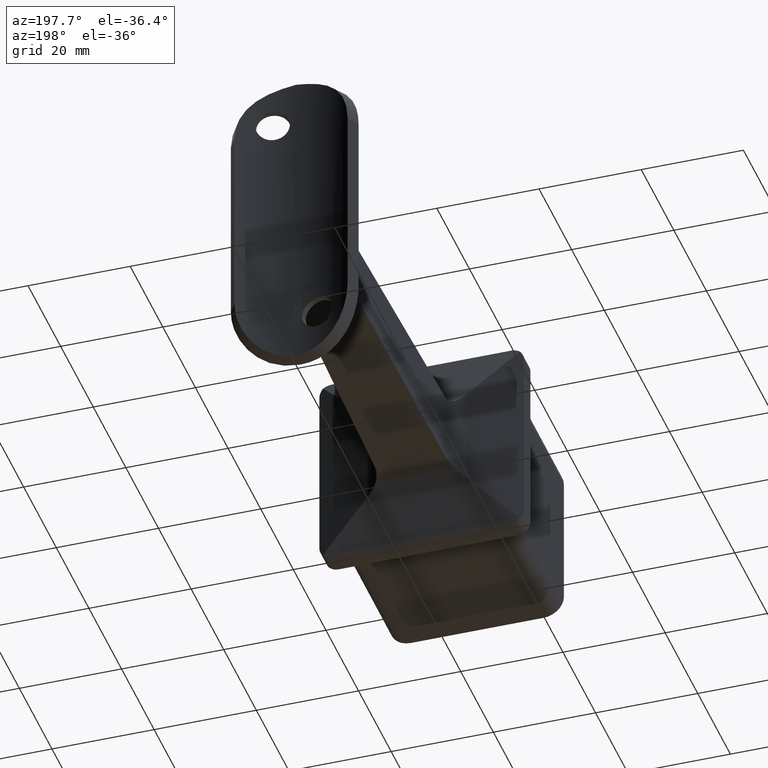
[diagram: clean part render]
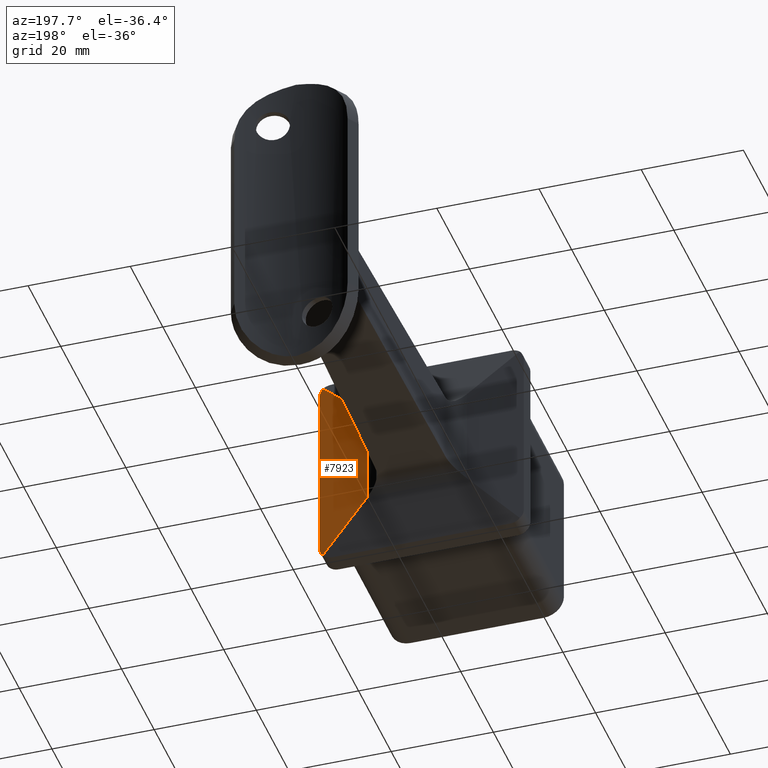
[diagram: same view with one face highlighted and labeled with its STEP entity id]
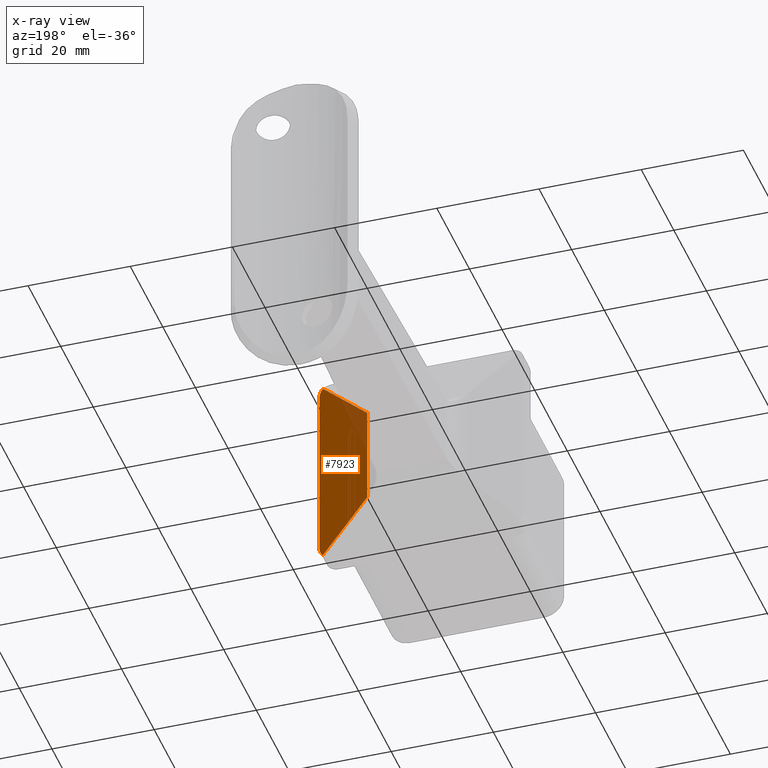
[diagram: x-ray of the same camera — body ghosted, the highlighted face saturated]
A machine part, auxiliary view. The second image highlights one B-rep face of the part: STEP entity #7923.
The next image is the same camera in x-ray: the body ghosted, the highlighted face saturated — about 8% of this face is hidden behind the body in this view.
In plain terms, the highlighted planar face has unit normal (-0.2588, -0.9659, 0).
Its self-contained STEP definition (entity closure, byte-faithful):
#365 = LINE ( 'NONE', #13705, #6500 ) ;
#552 = LINE ( 'NONE', #13157, #11450 ) ;
#777 = CARTESIAN_POINT ( 'NONE',  ( 19.99999999999999645, 4.000000000000000000, 17.50000000000000000 ) ) ;
#945 = CARTESIAN_POINT ( 'NONE',  ( 19.99999999999999645, 4.000000000000000000, 17.50000000000000000 ) ) ;
#1026 = DIRECTION ( 'NONE',  ( -0.6947465906068676089, 0.1861567878973811596, 0.6947465906068650554 ) ) ;
#2440 = CARTESIAN_POINT ( 'NONE',  ( 9.761795883327712531, 6.743318525007262920, 9.761795883327716083 ) ) ;
#2494 = EDGE_LOOP ( 'NONE', ( #7026, #5663, #9996, #13611, #15310, #11151 ) ) ;
#2902 = FACE_OUTER_BOUND ( 'NONE', #2494, .T. ) ;
#2976 = DIRECTION ( 'NONE',  ( -0.2588190451025145222, -0.9659258262890699775, 0.000000000000000000 ) ) ;
#3530 = EDGE_CURVE ( 'NONE', #6399, #10869, #10412, .T. ) ;
#4325 = CARTESIAN_POINT ( 'NONE',  ( 19.99999999999999645, 4.000000000000000000, -17.50000000000000355 ) ) ;
#4788 = CARTESIAN_POINT ( 'NONE',  ( 19.74287394743915769, 4.068896718136678636, 18.79265995849359072 ) ) ;
#5646 = CARTESIAN_POINT ( 'NONE',  ( 1.339745962155122871, 9.000000000000001776, -20.00000000000000355 ) ) ;
#5663 = ORIENTED_EDGE ( 'NONE', *, *, #13506, .T. ) ;
#6399 = VERTEX_POINT ( 'NONE', #8474 ) ;
#6500 = VECTOR ( 'NONE', #1026, 1000.000000000000000 ) ;
#6730 = CARTESIAN_POINT ( 'NONE',  ( 19.26776695296639730, 4.196201253624027849, -19.26776695296634401 ) ) ;
#7026 = ORIENTED_EDGE ( 'NONE', *, *, #9010, .F. ) ;
#7100 = CARTESIAN_POINT ( 'NONE',  ( 19.26776695296637953, 4.196201253624032290, 19.26776695296638309 ) ) ;
#7320 = VERTEX_POINT ( 'NONE', #9090 ) ;
#7415 = EDGE_CURVE ( 'NONE', #7599, #10309, #552, .T. ) ;
#7480 =( BOUNDED_CURVE ( )  B_SPLINE_CURVE ( 3, ( #4325, #14469, #10642, #6730 ),
 .UNSPECIFIED., .F., .F. ) 
 B_SPLINE_CURVE_WITH_KNOTS ( ( 4, 4 ),
 ( 0.000000000000000000, 0.7853981633974315146 ),
 .UNSPECIFIED. ) 
 CURVE ( )  GEOMETRIC_REPRESENTATION_ITEM ( )  RATIONAL_B_SPLINE_CURVE ( ( 1.000000000000000000, 0.9492530216741933424, 0.9492530216741933424, 1.000000000000000000 ) ) 
 REPRESENTATION_ITEM ( '' )  );
#7599 = VERTEX_POINT ( 'NONE', #13600 ) ;
#7638 = EDGE_CURVE ( 'NONE', #9377, #7599, #365, .T. ) ;
#7888 = CARTESIAN_POINT ( 'NONE',  ( -8.960369509592110759, 11.75990762260191502, -8.960369509592107207 ) ) ;
#7923 = ADVANCED_FACE ( 'NONE', ( #2902 ), #10522, .F. ) ;
#8474 = CARTESIAN_POINT ( 'NONE',  ( 19.26776695296637953, 4.196201253624032290, 19.26776695296638309 ) ) ;
#8511 = CARTESIAN_POINT ( 'NONE',  ( 20.00000000000000000, 3.999999999999997335, 18.17190275516172804 ) ) ;
#9010 = EDGE_CURVE ( 'NONE', #7320, #10869, #9420, .T. ) ;
#9090 = CARTESIAN_POINT ( 'NONE',  ( 19.99999999999999645, 4.000000000000000000, -17.50000000000000355 ) ) ;
#9377 = VERTEX_POINT ( 'NONE', #13055 ) ;
#9382 = CARTESIAN_POINT ( 'NONE',  ( 19.99999999999999645, 4.000000000000000000, -20.00000000000000355 ) ) ;
#9420 = LINE ( 'NONE', #9382, #14203 ) ;
#9542 = DIRECTION ( 'NONE',  ( -0.000000000000000000, -0.000000000000000000, 1.000000000000000000 ) ) ;
#9996 = ORIENTED_EDGE ( 'NONE', *, *, #7638, .T. ) ;
#10309 = VERTEX_POINT ( 'NONE', #2440 ) ;
#10412 =( BOUNDED_CURVE ( )  B_SPLINE_CURVE ( 3, ( #7100, #4788, #8511, #945 ),
 .UNSPECIFIED., .F., .F. ) 
 B_SPLINE_CURVE_WITH_KNOTS ( ( 4, 4 ),
 ( 5.497787143782136177, 6.283185307179586232 ),
 .UNSPECIFIED. ) 
 CURVE ( )  GEOMETRIC_REPRESENTATION_ITEM ( )  RATIONAL_B_SPLINE_CURVE ( ( 1.000000000000000000, 0.9492530216741910110, 0.9492530216741910110, 1.000000000000000000 ) ) 
 REPRESENTATION_ITEM ( '' )  );
#10466 = DIRECTION ( 'NONE',  ( 0.9659258262890699775, -0.2588190451025145222, 0.000000000000000000 ) ) ;
#10522 = PLANE ( 'NONE',  #15151 ) ;
#10642 = CARTESIAN_POINT ( 'NONE',  ( 19.74287394743916124, 4.068896718136675972, -18.79265995849356230 ) ) ;
#10869 = VERTEX_POINT ( 'NONE', #777 ) ;
#11144 = LINE ( 'NONE', #7888, #12125 ) ;
#11151 = ORIENTED_EDGE ( 'NONE', *, *, #3530, .T. ) ;
#11450 = VECTOR ( 'NONE', #15484, 1000.000000000000000 ) ;
#11913 = EDGE_CURVE ( 'NONE', #10309, #6399, #11144, .T. ) ;
#12125 = VECTOR ( 'NONE', #12820, 1000.000000000000000 ) ;
#12820 = DIRECTION ( 'NONE',  ( 0.6947465906068663877, -0.1861567878973808821, 0.6947465906068663877 ) ) ;
#13055 = CARTESIAN_POINT ( 'NONE',  ( 19.26776695296639730, 4.196201253624027849, -19.26776695296634401 ) ) ;
#13157 = CARTESIAN_POINT ( 'NONE',  ( 9.761795883327710754, 6.743318525007262920, -20.00000000000000355 ) ) ;
#13506 = EDGE_CURVE ( 'NONE', #7320, #9377, #7480, .T. ) ;
#13600 = CARTESIAN_POINT ( 'NONE',  ( 9.761795883327733847, 6.743318525007257591, -9.761795883327712531 ) ) ;
#13611 = ORIENTED_EDGE ( 'NONE', *, *, #7415, .T. ) ;
#13705 = CARTESIAN_POINT ( 'NONE',  ( 10.34654349680247876, 6.586635874200677421, -10.34654349680245566 ) ) ;
#14203 = VECTOR ( 'NONE', #9542, 1000.000000000000000 ) ;
#14469 = CARTESIAN_POINT ( 'NONE',  ( 20.00000000000000355, 3.999999999999998224, -18.17190275516171383 ) ) ;
#15151 = AXIS2_PLACEMENT_3D ( 'NONE', #5646, #2976, #10466 ) ;
#15310 = ORIENTED_EDGE ( 'NONE', *, *, #11913, .T. ) ;
#15484 = DIRECTION ( 'NONE',  ( 0.000000000000000000, 0.000000000000000000, 1.000000000000000000 ) ) ;